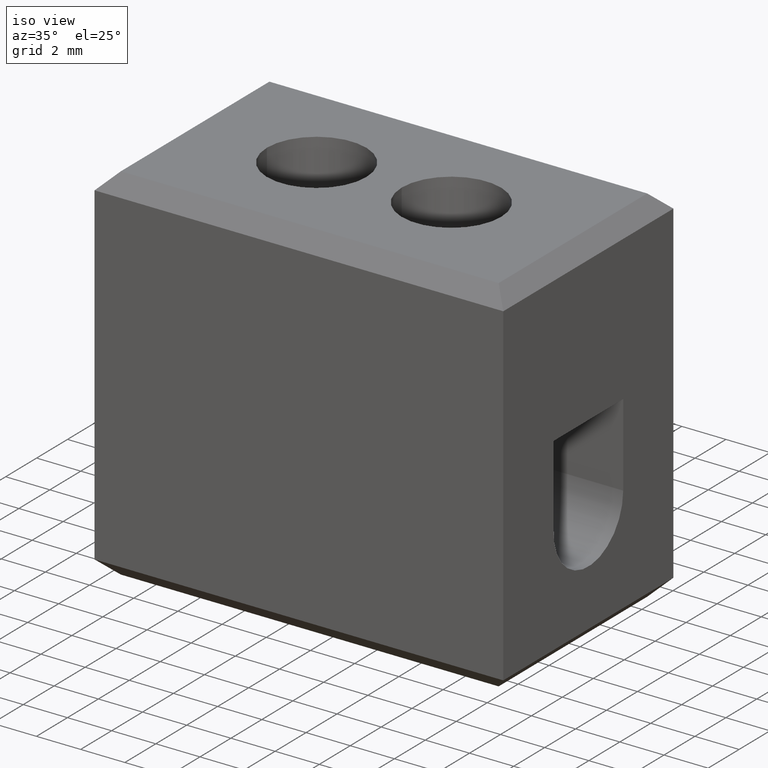
[diagram: clean part render]
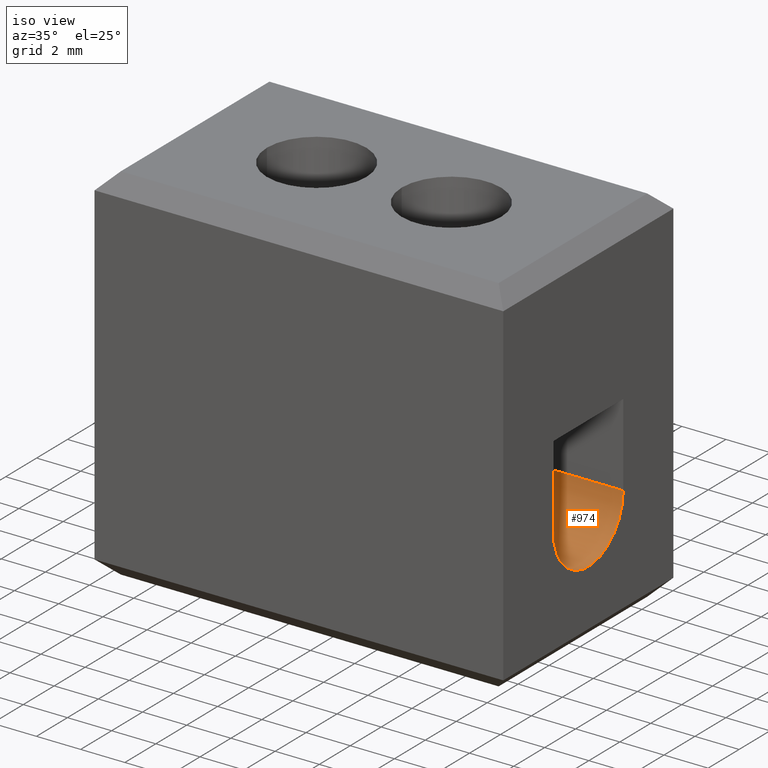
[diagram: same view with one face highlighted and labeled with its STEP entity id]
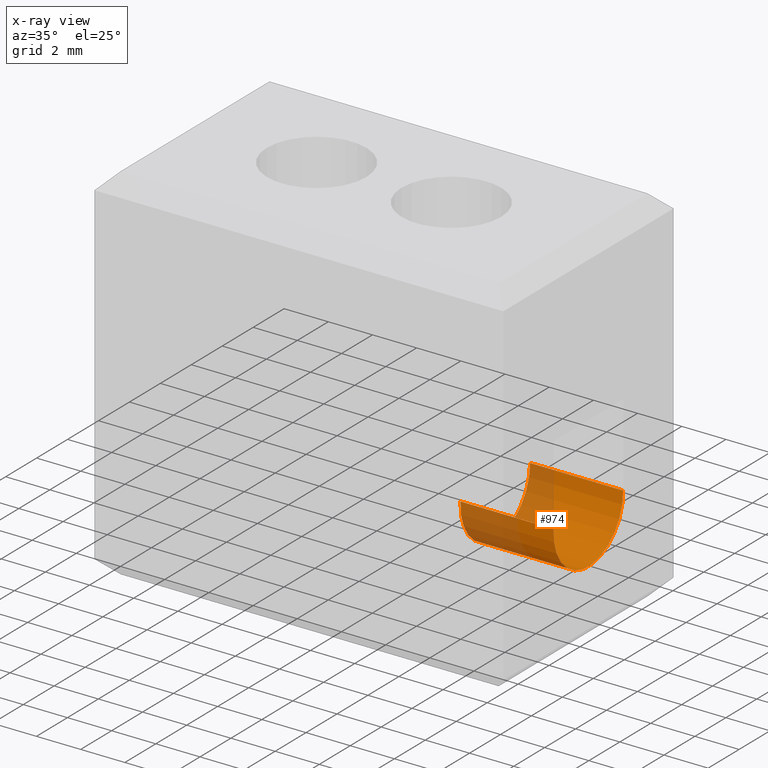
[diagram: x-ray of the same camera — body ghosted, the highlighted face saturated]
A machine part, iso view. The second image highlights one B-rep face of the part: STEP entity #974.
The next image is the same camera in x-ray: the body ghosted, the highlighted face saturated — about 37% of this face is hidden behind the body in this view.
In plain terms, the highlighted cylindrical surface (partial cylindrical patch) has radius 2.2524 mm, axis along (-1, 0, 0).
Its self-contained STEP definition (entity closure, byte-faithful):
#34 = VERTEX_POINT ( 'NONE', #2210 ) ;
#46 = VERTEX_POINT ( 'NONE', #2204 ) ;
#55 = EDGE_LOOP ( 'NONE', ( #1977, #1964, #1957, #1987 ) ) ;
#170 = VERTEX_POINT ( 'NONE', #2229 ) ;
#172 = VERTEX_POINT ( 'NONE', #2247 ) ;
#394 = EDGE_CURVE ( 'NONE', #172, #170, #1114, .T. ) ;
#476 = EDGE_CURVE ( 'NONE', #34, #172, #939, .T. ) ;
#492 = EDGE_CURVE ( 'NONE', #46, #170, #625, .T. ) ;
#512 = EDGE_CURVE ( 'NONE', #34, #46, #1179, .T. ) ;
#625 = LINE ( 'NONE', #626, #1177 ) ;
#626 = CARTESIAN_POINT ( 'NONE',  ( 25.97575932689588600, 7.754931149476007600, 5.502378536806437700 ) ) ;
#628 = DIRECTION ( 'NONE',  ( -1.000000000000000000, 0.0000000000000000000, 0.0000000000000000000 ) ) ;
#682 = CARTESIAN_POINT ( 'NONE',  ( 10.72575932689603900, 5.502552612669742200, 5.502378536806437700 ) ) ;
#692 = DIRECTION ( 'NONE',  ( 0.0000000000000000000, 0.0000000000000000000, 1.000000000000000000 ) ) ;
#702 = DIRECTION ( 'NONE',  ( 1.000000000000000000, -0.0000000000000000000, -0.0000000000000000000 ) ) ;
#930 = CARTESIAN_POINT ( 'NONE',  ( 25.97575932689588600, 3.254931149475837100, 5.648689272080336100 ) ) ;
#939 = LINE ( 'NONE', #930, #1170 ) ;
#944 = DIRECTION ( 'NONE',  ( -1.000000000000000000, 0.0000000000000000000, 0.0000000000000000000 ) ) ;
#974 = ADVANCED_FACE ( 'NONE', ( #1398 ), #1389, .F. ) ;
#1093 = AXIS2_PLACEMENT_3D ( 'NONE', #2419, #2447, #2429 ) ;
#1114 = CIRCLE ( 'NONE', #1093, 2.252378536806350700 ) ;
#1170 = VECTOR ( 'NONE', #944, 1000.000000000000000 ) ;
#1177 = VECTOR ( 'NONE', #628, 1000.000000000000000 ) ;
#1179 = CIRCLE ( 'NONE', #1203, 2.252378536806351100 ) ;
#1203 = AXIS2_PLACEMENT_3D ( 'NONE', #682, #702, #692 ) ;
#1318 = AXIS2_PLACEMENT_3D ( 'NONE', #1403, #1394, #1404 ) ;
#1389 = CYLINDRICAL_SURFACE ( 'NONE', #1318, 2.252378536806351100 ) ;
#1394 = DIRECTION ( 'NONE',  ( -1.000000000000000000, 0.0000000000000000000, 0.0000000000000000000 ) ) ;
#1398 = FACE_OUTER_BOUND ( 'NONE', #55, .T. ) ;
#1403 = CARTESIAN_POINT ( 'NONE',  ( 25.97575932689588600, 5.502552612669742200, 5.502378536806437700 ) ) ;
#1404 = DIRECTION ( 'NONE',  ( 0.0000000000000000000, 0.0000000000000000000, 1.000000000000000000 ) ) ;
#1957 = ORIENTED_EDGE ( 'NONE', *, *, #512, .T. ) ;
#1964 = ORIENTED_EDGE ( 'NONE', *, *, #476, .F. ) ;
#1977 = ORIENTED_EDGE ( 'NONE', *, *, #394, .F. ) ;
#1987 = ORIENTED_EDGE ( 'NONE', *, *, #492, .T. ) ;
#2204 = CARTESIAN_POINT ( 'NONE',  ( 10.72575932689603900, 7.754931149476007600, 5.502378536806437700 ) ) ;
#2210 = CARTESIAN_POINT ( 'NONE',  ( 10.72575932689603900, 3.254931149475837100, 5.648689272080336100 ) ) ;
#2229 = CARTESIAN_POINT ( 'NONE',  ( 6.511503443081850600, 7.754931149476007600, 5.502378536806437700 ) ) ;
#2247 = CARTESIAN_POINT ( 'NONE',  ( 6.511503443081851500, 3.254931149475837100, 5.648689272080336100 ) ) ;
#2419 = CARTESIAN_POINT ( 'NONE',  ( 6.511503443081850600, 5.502552612669742200, 5.502378536806437700 ) ) ;
#2429 = DIRECTION ( 'NONE',  ( 3.850870197059489000E-016, 0.0000000000000000000, -1.000000000000000000 ) ) ;
#2447 = DIRECTION ( 'NONE',  ( 1.000000000000000000, 0.0000000000000000000, 3.017730232820021200E-016 ) ) ;